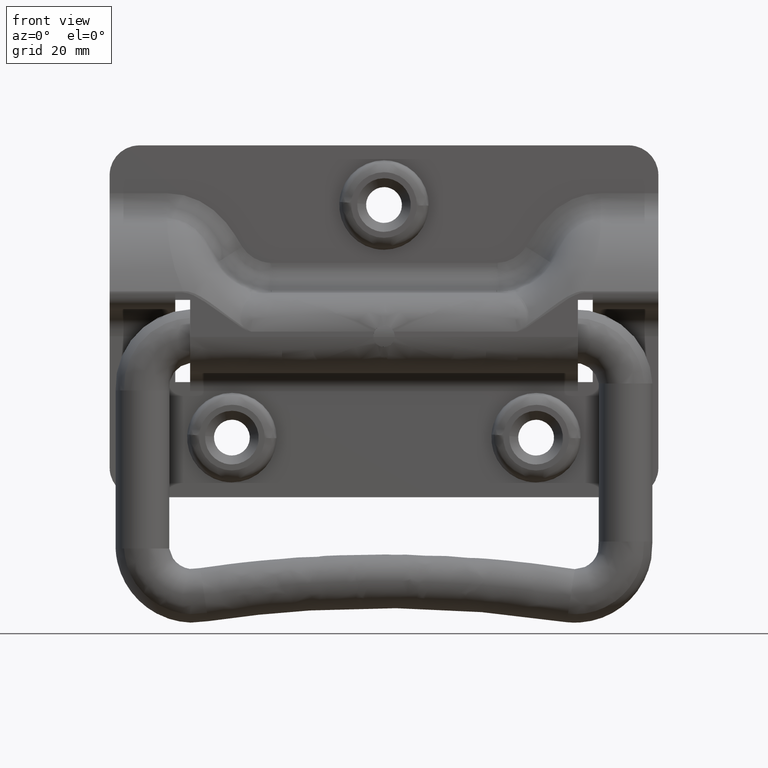
[diagram: clean part render]
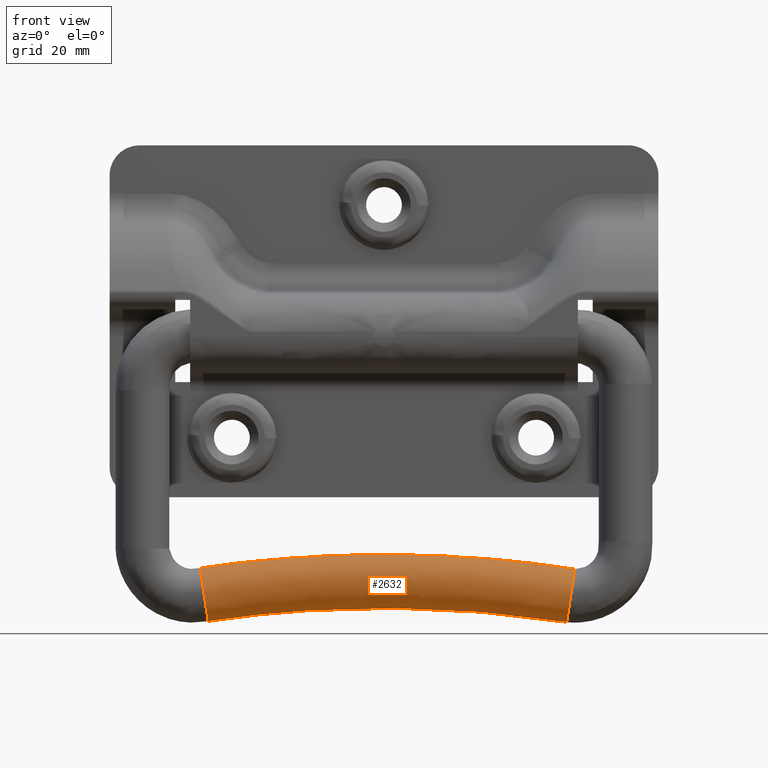
[diagram: same view with one face highlighted and labeled with its STEP entity id]
A machine part, front view. The second image highlights one B-rep face of the part: STEP entity #2632.
In plain terms, the highlighted face is a freeform B-spline surface patch.
Its self-contained STEP definition (entity closure, byte-faithful):
#2322=CARTESIAN_POINT('',(-29.684616832711360,-3.280266795866370,-46.361512184864523));
#2323=VERTEX_POINT('',#2322);
#2337=CARTESIAN_POINT('',(-30.823458438055649,-1.192622E-014,-38.867132783975350));
#2338=VERTEX_POINT('',#2337);
#2339=CARTESIAN_POINT('',(-29.684616832711360,-3.280266795866370,-46.361512184864523));
#2340=CARTESIAN_POINT('',(-29.808583680455190,-4.053043751223142,-45.545723065671190));
#2341=CARTESIAN_POINT('',(-29.977490672470068,-4.500000000000000,-44.434196163525932));
#2342=CARTESIAN_POINT('',(-30.324393234535549,-4.500000000000000,-42.151333118253547));
#2343=CARTESIAN_POINT('',(-30.500294488464249,-4.015021066244170,-40.993779049410762));
#2344=CARTESIAN_POINT('',(-30.750597753039951,-2.348939964434780,-39.346607378470203));
#2345=CARTESIAN_POINT('',(-30.823458438055649,-1.178097245096184,-38.867132783975350));
#2346=CARTESIAN_POINT('',(-30.823458438055649,-1.192622E-014,-38.867132783975350));
#2347=B_SPLINE_CURVE_WITH_KNOTS('',3,(#2339,#2340,#2341,#2342,#2343,#2344,#2345,#2346),.UNSPECIFIED.,.F.,.U.,(4,2,2,4),(0.130000045181916,0.250000000000000,0.375000000000000,0.500000000000000),.UNSPECIFIED.);
#2348=EDGE_CURVE('',#2323,#2338,#2347,.T.);
#2350=CARTESIAN_POINT('',(-30.775371975465909,1.654889872922852,-39.183575556177452));
#2351=VERTEX_POINT('',#2350);
#2352=CARTESIAN_POINT('',(-30.823458438055649,-1.192622E-014,-38.867132783975350));
#2353=CARTESIAN_POINT('',(-30.823458438055649,0.565486744415046,-38.867132783975350));
#2354=CARTESIAN_POINT('',(-30.806671332263811,1.129302045700853,-38.977603756634309));
#2355=CARTESIAN_POINT('',(-30.775371975465909,1.654889872922852,-39.183575556177452));
#2356=B_SPLINE_CURVE_WITH_KNOTS('',3,(#2352,#2353,#2354,#2355),.UNSPECIFIED.,.F.,.U.,(4,4),(0.500000000000000,0.560000007084400),.UNSPECIFIED.);
#2357=EDGE_CURVE('',#2338,#2351,#2356,.T.);
#2359=CARTESIAN_POINT('',(-29.471345759546200,-1.198640E-014,-47.764985969132702));
#2360=VERTEX_POINT('',#2359);
#2456=CARTESIAN_POINT('',(-29.471345759546200,-1.192622E-014,-47.764985969132702));
#2457=CARTESIAN_POINT('',(-29.471345759546200,-1.178097245096184,-47.764985969132702));
#2458=CARTESIAN_POINT('',(-29.544206444561901,-2.348939964434785,-47.285511374637800));
#2459=CARTESIAN_POINT('',(-29.674364187377989,-3.215302438482608,-46.428981808059262));
#2460=CARTESIAN_POINT('',(-29.679451498768358,-3.248067452973556,-46.395503718120352));
#2461=CARTESIAN_POINT('',(-29.684616832711360,-3.280266795866370,-46.361512184864523));
#2462=B_SPLINE_CURVE_WITH_KNOTS('',3,(#2456,#2457,#2458,#2459,#2460,#2461),.UNSPECIFIED.,.F.,.U.,(4,2,4),(0.0,0.125000000000000,0.130000045181916),.UNSPECIFIED.);
#2463=EDGE_CURVE('',#2360,#2323,#2462,.T.);
#2511=CARTESIAN_POINT('',(31.926577220991369,1.654889872377750,-39.358512437207672));
#2512=VERTEX_POINT('',#2511);
#2513=CARTESIAN_POINT('',(31.926577220991369,1.654889872377750,-39.358512437207672));
#2514=CARTESIAN_POINT('',(11.194921875773479,1.654889779438296,-36.136880628934179));
#2515=CARTESIAN_POINT('',(-10.025835984268410,1.654889779835982,-36.089690155881669));
#2516=CARTESIAN_POINT('',(-30.775371975465909,1.654889872922852,-39.183575556177452));
#2517=B_SPLINE_CURVE_WITH_KNOTS('',3,(#2513,#2514,#2515,#2516),.UNSPECIFIED.,.F.,.U.,(4,4),(0.340609733240651,0.659390266759349),.UNSPECIFIED.);
#2518=EDGE_CURVE('',#2512,#2351,#2517,.T.);
#2520=CARTESIAN_POINT('',(30.622551005039210,1.992547E-015,-47.939922850376497));
#2521=VERTEX_POINT('',#2520);
#2535=CARTESIAN_POINT('',(30.622551005039199,1.998401E-015,-47.939922850376497));
#2536=CARTESIAN_POINT('',(10.753822273501440,-3.945519E-010,-44.849421504725498));
#2537=CARTESIAN_POINT('',(-9.584734977947825,-1.199041E-014,-44.802229555601002));
#2538=CARTESIAN_POINT('',(-29.471345759546200,-1.199041E-014,-47.764985969132702));
#2539=B_SPLINE_CURVE_WITH_KNOTS('',3,(#2535,#2536,#2537,#2538),.UNSPECIFIED.,.F.,.U.,(4,4),(0.340609733240651,0.659390266759349),.UNSPECIFIED.);
#2540=EDGE_CURVE('',#2521,#2360,#2539,.T.);
#2545=CARTESIAN_POINT('',(30.622551005039199,1.951564E-015,-47.939922850376497));
#2546=CARTESIAN_POINT('',(30.622551005039199,-1.178097245096170,-47.939922850376497));
#2547=CARTESIAN_POINT('',(30.695411690054900,-2.348939964434770,-47.460448255881701));
#2548=CARTESIAN_POINT('',(30.945714954630599,-4.015021066244156,-45.813276584941100));
#2549=CARTESIAN_POINT('',(31.121616208559299,-4.500000000000000,-44.655722516098308));
#2550=CARTESIAN_POINT('',(31.475598480028552,-4.500000000000000,-42.326269999497399));
#2551=CARTESIAN_POINT('',(31.651499733957252,-4.015021066244156,-41.168715930654599));
#2552=CARTESIAN_POINT('',(31.901802998532951,-2.348939964434770,-39.521544259714062));
#2553=CARTESIAN_POINT('',(31.974663683548648,-1.178097245096172,-39.042069665219202));
#2554=CARTESIAN_POINT('',(31.974663683548648,0.565486677646163,-39.042069665219202));
#2555=CARTESIAN_POINT('',(31.957876581721031,1.129301912557781,-39.152540611790812));
#2556=CARTESIAN_POINT('',(31.926577226502332,1.654889779835993,-39.358512400941621));
#2557=CARTESIAN_POINT('',(10.753822273501440,-3.945520E-010,-44.849421504725498));
#2558=CARTESIAN_POINT('',(10.753822273501420,-1.178097245490724,-44.849421504725498));
#2559=CARTESIAN_POINT('',(10.778468107396399,-2.348939964836010,-44.362620174726047));
#2560=CARTESIAN_POINT('',(10.863135620235100,-4.015021066645400,-42.690278472546652));
#2561=CARTESIAN_POINT('',(10.922635932873860,-4.500000000401239,-41.515036102610303));
#2562=CARTESIAN_POINT('',(11.042373893486600,-4.500000000401239,-39.149987794333200));
#2563=CARTESIAN_POINT('',(11.101874215011060,-4.015021066645400,-37.974745428041750));
#2564=CARTESIAN_POINT('',(11.186541749470500,-2.348939964836010,-36.302403736759750));
#2565=CARTESIAN_POINT('',(11.211187592092219,-1.178097245490728,-35.815602410667800));
#2566=CARTESIAN_POINT('',(11.211187592092211,0.565486677251607,-35.815602410667800));
#2567=CARTESIAN_POINT('',(11.205509189974331,1.129301912161685,-35.927761436202829));
#2568=CARTESIAN_POINT('',(11.194921875773479,1.654889779438296,-36.136880628934179));
#2569=CARTESIAN_POINT('',(-9.584734977947825,-1.192622E-014,-44.802229555601002));
#2570=CARTESIAN_POINT('',(-9.584734977947811,-1.178097245096184,-44.802229555601002));
#2571=CARTESIAN_POINT('',(-9.609380893509691,-2.348939964434785,-44.315428311390463));
#2572=CARTESIAN_POINT('',(-9.694048683905960,-4.015021066244170,-42.643086901393850));
#2573=CARTESIAN_POINT('',(-9.753549188890890,-4.500000000000000,-41.467844733443293));
#2574=CARTESIAN_POINT('',(-9.873287529929058,-4.500000000000000,-39.102796825304949));
#2575=CARTESIAN_POINT('',(-9.932788037275410,-4.015021066244170,-37.927554654307947));
#2576=CARTESIAN_POINT('',(-10.017455832561019,-2.348939964434780,-36.255213237167943));
#2577=CARTESIAN_POINT('',(-10.042101750326481,-1.178097245096184,-35.768411989951296));
#2578=CARTESIAN_POINT('',(-10.042101750326481,0.565486677646151,-35.768411989951296));
#2579=CARTESIAN_POINT('',(-10.036423330896421,1.129301912557770,-35.880570997264172));
#2580=CARTESIAN_POINT('',(-10.025835984268410,1.654889779835982,-36.089690155881669));
#2581=CARTESIAN_POINT('',(-29.471345759546200,-1.192622E-014,-47.764985969132702));
#2582=CARTESIAN_POINT('',(-29.471345759546200,-1.178097245096184,-47.764985969132702));
#2583=CARTESIAN_POINT('',(-29.544206444561901,-2.348939964434785,-47.285511374637800));
#2584=CARTESIAN_POINT('',(-29.794509709137600,-4.015021066244170,-45.638339703697312));
#2585=CARTESIAN_POINT('',(-29.970410963066300,-4.500000000000000,-44.480785634854463));
#2586=CARTESIAN_POINT('',(-30.324393234535549,-4.500000000000000,-42.151333118253547));
#2587=CARTESIAN_POINT('',(-30.500294488464249,-4.015021066244170,-40.993779049410762));
#2588=CARTESIAN_POINT('',(-30.750597753039951,-2.348939964434780,-39.346607378470203));
#2589=CARTESIAN_POINT('',(-30.823458438055649,-1.178097245096184,-38.867132783975350));
#2590=CARTESIAN_POINT('',(-30.823458438055649,0.565486677646151,-38.867132783975350));
#2591=CARTESIAN_POINT('',(-30.806671336228039,1.129301912557770,-38.977603730546967));
#2592=CARTESIAN_POINT('',(-30.775371981009339,1.654889779835982,-39.183575519697783));
#2593=B_SPLINE_SURFACE_WITH_KNOTS('',3,3,((#2545,#2557,#2569,#2581),(#2546,#2558,#2570,#2582),(#2547,#2559,#2571,#2583),(#2548,#2560,#2572,#2584),(#2549,#2561,#2573,#2585),(#2550,#2562,#2574,#2586),(#2551,#2563,#2575,#2587),(#2552,#2564,#2576,#2588),(#2553,#2565,#2577,#2589),(#2554,#2566,#2578,#2590),(#2555,#2567,#2579,#2591),(#2556,#2568,#2580,#2592)),.UNSPECIFIED.,.F.,.F.,.U.,(4,2,2,2,2,4),(4,4),(0.0,3.534291735288517,7.068583470577034,10.602875205865550,14.137166941154071,15.833626974092560),(0.0,63.027392215428520),.UNSPECIFIED.);
#2594=ORIENTED_EDGE('',*,*,#2357,.F.);
#2595=ORIENTED_EDGE('',*,*,#2348,.F.);
#2596=ORIENTED_EDGE('',*,*,#2463,.F.);
#2597=ORIENTED_EDGE('',*,*,#2540,.F.);
#2598=CARTESIAN_POINT('',(30.835822101589422,-3.280266941642568,-46.536448912218262));
#2599=VERTEX_POINT('',#2598);
#2600=CARTESIAN_POINT('',(30.622551005039199,1.951564E-015,-47.939922850376497));
#2601=CARTESIAN_POINT('',(30.622551005039199,-1.178097245096170,-47.939922850376497));
#2602=CARTESIAN_POINT('',(30.695411690054900,-2.348939964434770,-47.460448255881701));
#2603=CARTESIAN_POINT('',(30.825569440425721,-3.215302488768768,-46.603918639587661));
#2604=CARTESIAN_POINT('',(30.830656759615898,-3.248067551865027,-46.570440498320501));
#2605=CARTESIAN_POINT('',(30.835822101589422,-3.280266941642568,-46.536448912218262));
#2606=B_SPLINE_CURVE_WITH_KNOTS('',3,(#2600,#2601,#2602,#2603,#2604,#2605),.UNSPECIFIED.,.F.,.U.,(4,2,4),(0.0,0.125000000000000,0.130000052727493),.UNSPECIFIED.);
#2607=EDGE_CURVE('',#2521,#2599,#2606,.T.);
#2608=ORIENTED_EDGE('',*,*,#2607,.T.);
#2609=CARTESIAN_POINT('',(31.974663683548648,0.0,-39.042069665219202));
#2610=VERTEX_POINT('',#2609);
#2611=CARTESIAN_POINT('',(30.835822101589422,-3.280266941642568,-46.536448912218262));
#2612=CARTESIAN_POINT('',(30.959788947189882,-4.053043807432197,-45.720659807129742));
#2613=CARTESIAN_POINT('',(31.128695928647080,-4.500000000000000,-44.609132974461517));
#2614=CARTESIAN_POINT('',(31.475598480028552,-4.500000000000000,-42.326269999497399));
#2615=CARTESIAN_POINT('',(31.651499733957252,-4.015021066244156,-41.168715930654599));
#2616=CARTESIAN_POINT('',(31.901802998532951,-2.348939964434770,-39.521544259714062));
#2617=CARTESIAN_POINT('',(31.974663683548648,-1.178097245096172,-39.042069665219202));
#2618=CARTESIAN_POINT('',(31.974663683548648,0.0,-39.042069665219202));
#2619=B_SPLINE_CURVE_WITH_KNOTS('',3,(#2611,#2612,#2613,#2614,#2615,#2616,#2617,#2618),.UNSPECIFIED.,.F.,.U.,(4,2,2,4),(0.130000052727493,0.250000000000000,0.375000000000000,0.500000000000000),.UNSPECIFIED.);
#2620=EDGE_CURVE('',#2599,#2610,#2619,.T.);
#2621=ORIENTED_EDGE('',*,*,#2620,.T.);
#2622=CARTESIAN_POINT('',(31.974663683548648,0.0,-39.042069665219202));
#2623=CARTESIAN_POINT('',(31.974663683548648,0.565486744024074,-39.042069665219202));
#2624=CARTESIAN_POINT('',(31.957876577780031,1.129302044921209,-39.152540637725387));
#2625=CARTESIAN_POINT('',(31.926577220991369,1.654889872377750,-39.358512437207672));
#2626=B_SPLINE_CURVE_WITH_KNOTS('',3,(#2622,#2623,#2624,#2625),.UNSPECIFIED.,.F.,.U.,(4,4),(0.500000000000000,0.560000007042915),.UNSPECIFIED.);
#2627=EDGE_CURVE('',#2610,#2512,#2626,.T.);
#2628=ORIENTED_EDGE('',*,*,#2627,.T.);
#2629=ORIENTED_EDGE('',*,*,#2518,.T.);
#2630=EDGE_LOOP('',(#2594,#2595,#2596,#2597,#2608,#2621,#2628,#2629));
#2631=FACE_OUTER_BOUND('',#2630,.T.);
#2632=ADVANCED_FACE('',(#2631),#2593,.T.);